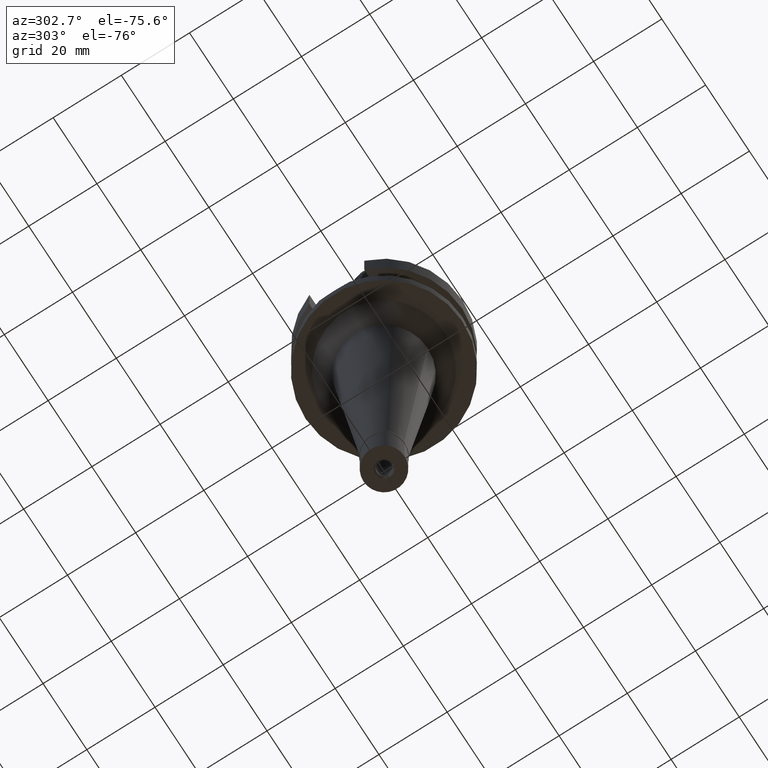
[diagram: clean part render]
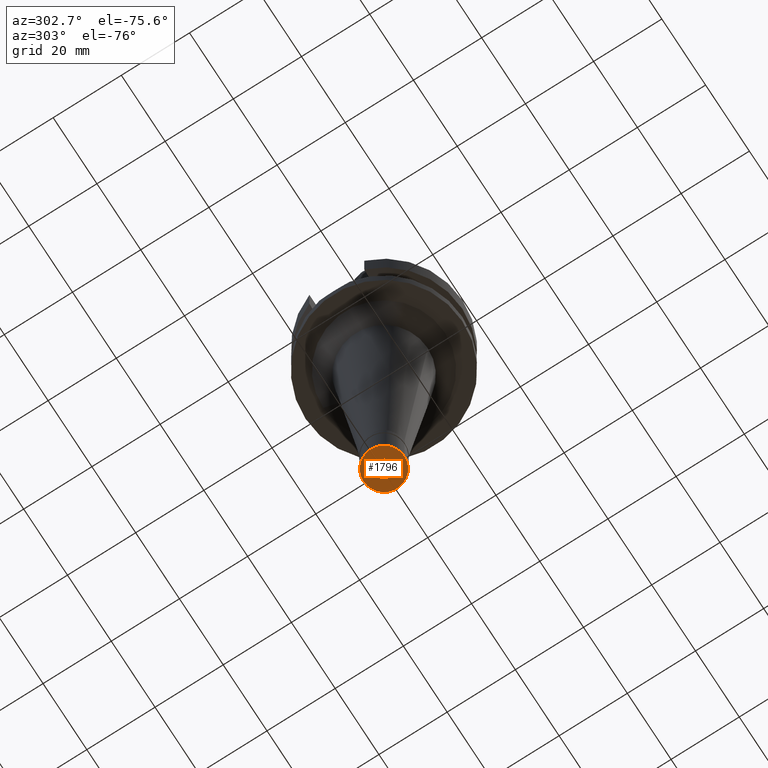
[diagram: same view with one face highlighted and labeled with its STEP entity id]
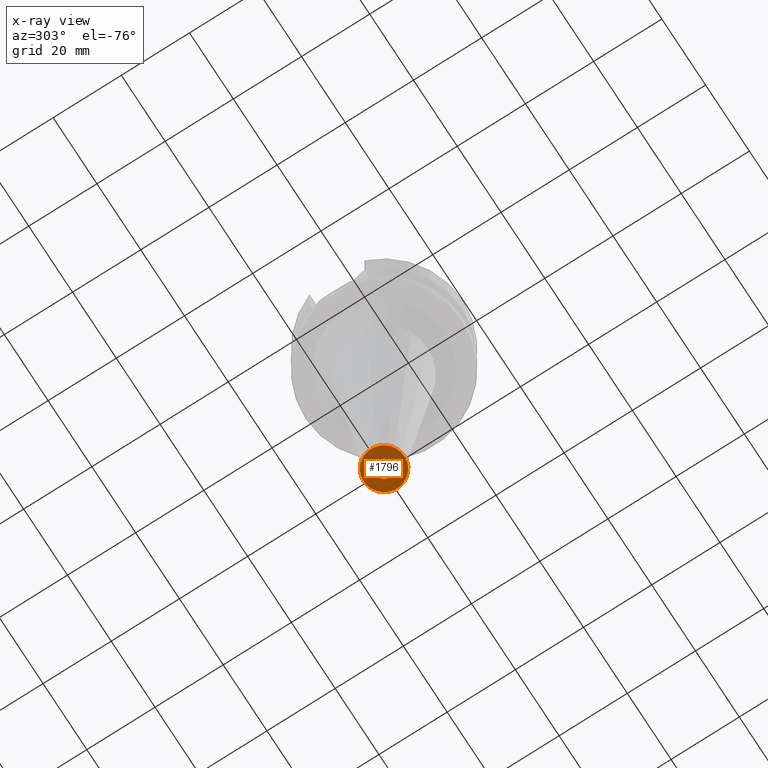
[diagram: x-ray of the same camera — body ghosted, the highlighted face saturated]
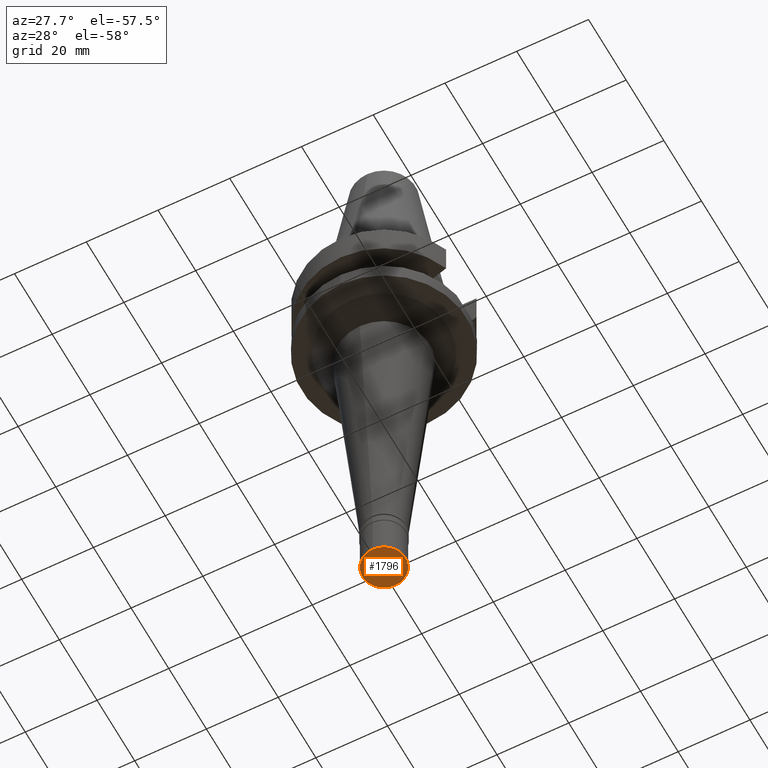
[diagram: same view with one face highlighted and labeled with its STEP entity id]
A machine part, auxiliary view. The second image highlights one B-rep face of the part: STEP entity #1796.
The next image is the same camera in x-ray: the body ghosted, the highlighted face saturated — about 0% of this face is hidden behind the body in this view.
A second angle (auxiliary view) of the same face is appended — the face is thin or edge-on in the first view.
In plain terms, the highlighted planar face has unit normal (0, 0, 1).
Its self-contained STEP definition (entity closure, byte-faithful):
#38 = DIRECTION ( 'NONE',  ( 0.0000000000000000000, 1.000000000000000000, 0.0000000000000000000 ) ) ;
#186 = CIRCLE ( 'NONE', #557, 6.000000000000000000 ) ;
#298 = VERTEX_POINT ( 'NONE', #1933 ) ;
#314 = AXIS2_PLACEMENT_3D ( 'NONE', #1388, #2018, #38 ) ;
#323 = ORIENTED_EDGE ( 'NONE', *, *, #398, .F. ) ;
#377 = DIRECTION ( 'NONE',  ( 0.0000000000000000000, 1.000000000000000000, 0.0000000000000000000 ) ) ;
#390 = AXIS2_PLACEMENT_3D ( 'NONE', #2785, #1686, #377 ) ;
#398 = EDGE_CURVE ( 'NONE', #1664, #2933, #186, .T. ) ;
#441 = ORIENTED_EDGE ( 'NONE', *, *, #1573, .F. ) ;
#557 = AXIS2_PLACEMENT_3D ( 'NONE', #1396, #2333, #969 ) ;
#604 = CARTESIAN_POINT ( 'NONE',  ( 0.0000000000000000000, 6.000000000000000000, -14.50000000000000000 ) ) ;
#606 = ORIENTED_EDGE ( 'NONE', *, *, #854, .F. ) ;
#612 = EDGE_LOOP ( 'NONE', ( #441, #323 ) ) ;
#854 = EDGE_CURVE ( 'NONE', #2830, #298, #1979, .T. ) ;
#877 = CIRCLE ( 'NONE', #2558, 2.550000000000000266 ) ;
#969 = DIRECTION ( 'NONE',  ( 0.0000000000000000000, -1.000000000000000000, 0.0000000000000000000 ) ) ;
#1035 = DIRECTION ( 'NONE',  ( 0.0000000000000000000, 0.0000000000000000000, 1.000000000000000000 ) ) ;
#1042 = EDGE_LOOP ( 'NONE', ( #606, #1556 ) ) ;
#1323 = CARTESIAN_POINT ( 'NONE',  ( 0.0000000000000000000, 2.550000000000000266, -14.50000000000000000 ) ) ;
#1388 = CARTESIAN_POINT ( 'NONE',  ( 0.0000000000000000000, 0.0000000000000000000, -14.50000000000000000 ) ) ;
#1396 = CARTESIAN_POINT ( 'NONE',  ( 0.0000000000000000000, 0.0000000000000000000, -14.50000000000000000 ) ) ;
#1456 = PLANE ( 'NONE',  #1809 ) ;
#1556 = ORIENTED_EDGE ( 'NONE', *, *, #1930, .F. ) ;
#1573 = EDGE_CURVE ( 'NONE', #2933, #1664, #2896, .T. ) ;
#1664 = VERTEX_POINT ( 'NONE', #2840 ) ;
#1686 = DIRECTION ( 'NONE',  ( 0.0000000000000000000, 0.0000000000000000000, -1.000000000000000000 ) ) ;
#1794 = DIRECTION ( 'NONE',  ( 0.0000000000000000000, 0.0000000000000000000, -1.000000000000000000 ) ) ;
#1796 = ADVANCED_FACE ( 'NONE', ( #1903, #2809 ), #1456, .F. ) ;
#1809 = AXIS2_PLACEMENT_3D ( 'NONE', #2359, #1035, #2871 ) ;
#1903 = FACE_OUTER_BOUND ( 'NONE', #612, .T. ) ;
#1930 = EDGE_CURVE ( 'NONE', #298, #2830, #877, .T. ) ;
#1933 = CARTESIAN_POINT ( 'NONE',  ( 0.0000000000000000000, -2.550000000000000266, -14.50000000000000000 ) ) ;
#1979 = CIRCLE ( 'NONE', #390, 2.550000000000000266 ) ;
#1982 = CARTESIAN_POINT ( 'NONE',  ( 0.0000000000000000000, 0.0000000000000000000, -14.50000000000000000 ) ) ;
#2018 = DIRECTION ( 'NONE',  ( 0.0000000000000000000, 0.0000000000000000000, 1.000000000000000000 ) ) ;
#2333 = DIRECTION ( 'NONE',  ( 0.0000000000000000000, 0.0000000000000000000, 1.000000000000000000 ) ) ;
#2359 = CARTESIAN_POINT ( 'NONE',  ( 0.0000000000000000000, 0.0000000000000000000, -14.50000000000000000 ) ) ;
#2420 = DIRECTION ( 'NONE',  ( 0.0000000000000000000, -1.000000000000000000, 0.0000000000000000000 ) ) ;
#2558 = AXIS2_PLACEMENT_3D ( 'NONE', #1982, #1794, #2420 ) ;
#2785 = CARTESIAN_POINT ( 'NONE',  ( 0.0000000000000000000, 0.0000000000000000000, -14.50000000000000000 ) ) ;
#2809 = FACE_BOUND ( 'NONE', #1042, .T. ) ;
#2830 = VERTEX_POINT ( 'NONE', #1323 ) ;
#2840 = CARTESIAN_POINT ( 'NONE',  ( 0.0000000000000000000, -6.000000000000000000, -14.50000000000000000 ) ) ;
#2871 = DIRECTION ( 'NONE',  ( 1.000000000000000000, 0.0000000000000000000, 0.0000000000000000000 ) ) ;
#2896 = CIRCLE ( 'NONE', #314, 6.000000000000000000 ) ;
#2933 = VERTEX_POINT ( 'NONE', #604 ) ;